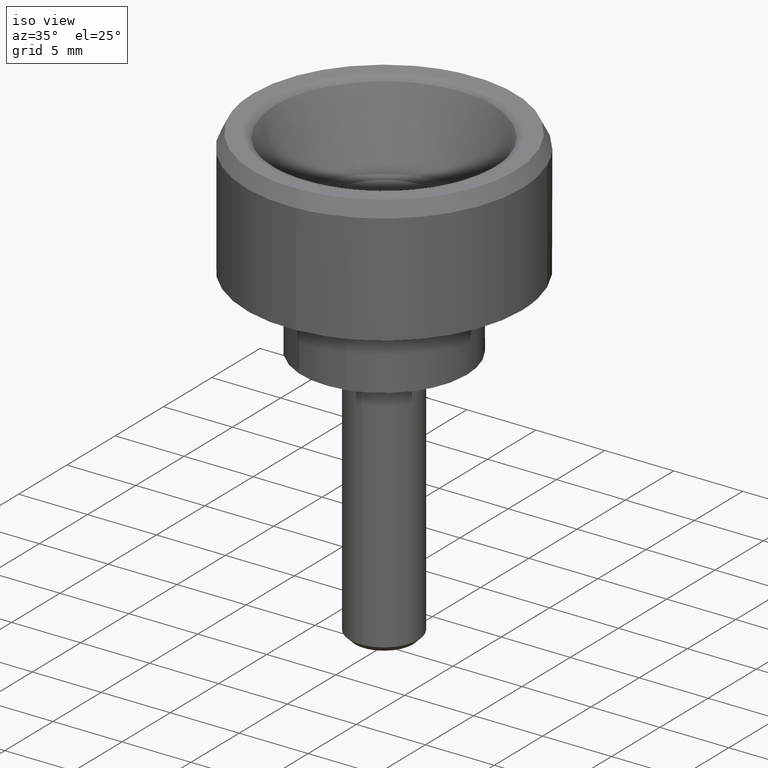
[diagram: clean part render]
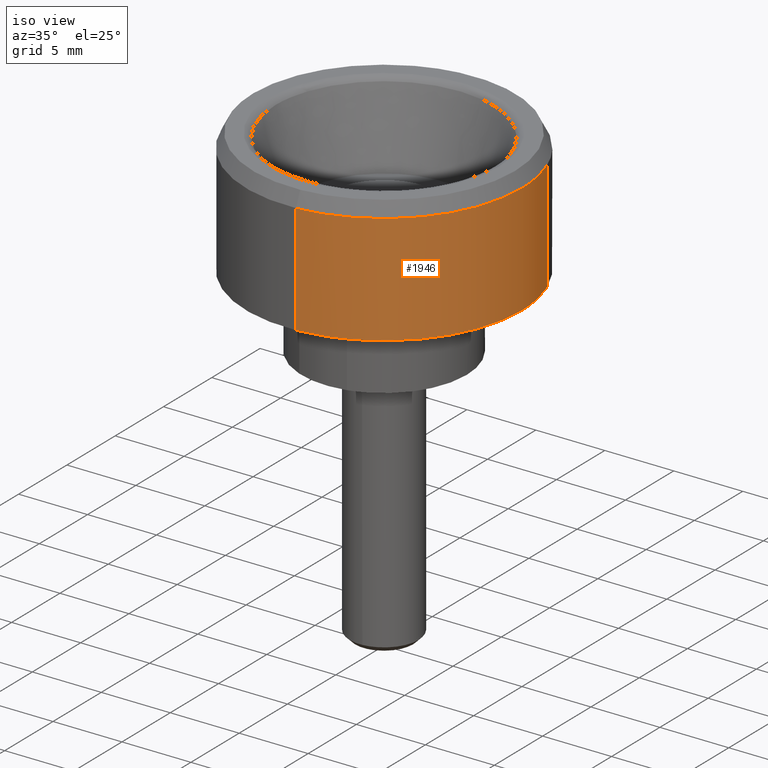
[diagram: same view with one face highlighted and labeled with its STEP entity id]
A machine part, iso view. The second image highlights one B-rep face of the part: STEP entity #1946.
In plain terms, the highlighted face is a freeform B-spline surface patch.
Its self-contained STEP definition (entity closure, byte-faithful):
#1739=CARTESIAN_POINT('',(2.503800040589022,-9.681476403775154,6.000000000001768));
#1740=VERTEX_POINT('',#1739);
#1746=CARTESIAN_POINT('',(0.610475361595761,-9.981348597899157,6.0));
#1747=VERTEX_POINT('',#1746);
#1748=CARTESIAN_POINT('',(2.503800040589022,-9.681476403775154,6.000000000001768));
#1749=CARTESIAN_POINT('',(1.571574981252123,-9.922566196700164,6.0));
#1750=CARTESIAN_POINT('',(0.610475361595761,-9.981348597899157,6.0));
#1758=(BOUNDED_CURVE()B_SPLINE_CURVE(2,(#1748,#1749,#1750),.UNSPECIFIED.,.F.,.U.)B_SPLINE_CURVE_WITH_KNOTS((3,3),(0.707273770288130,0.739333135694699),.UNSPECIFIED.)CURVE()GEOMETRIC_REPRESENTATION_ITEM()RATIONAL_B_SPLINE_CURVE((0.916996154474456,0.941717699901954,0.976072413415703))REPRESENTATION_ITEM(''));
#1759=EDGE_CURVE('',#1740,#1747,#1758,.T.);
#1797=CARTESIAN_POINT('',(9.361437293113475,3.516175736092539,6.0));
#1798=VERTEX_POINT('',#1797);
#1814=CARTESIAN_POINT('',(10.0,0.0,6.0));
#1815=VERTEX_POINT('',#1814);
#1816=CARTESIAN_POINT('',(9.361437293113475,3.516175736092540,6.0));
#1817=CARTESIAN_POINT('',(10.0,1.816071649465481,6.000000000000001));
#1818=CARTESIAN_POINT('',(10.0,0.0,6.0));
#1826=(BOUNDED_CURVE()B_SPLINE_CURVE(2,(#1816,#1817,#1818),.UNSPECIFIED.,.F.,.U.)B_SPLINE_CURVE_WITH_KNOTS((3,3),(0.440284238520502,0.500000000000000),.UNSPECIFIED.)CURVE()GEOMETRIC_REPRESENTATION_ITEM()RATIONAL_B_SPLINE_CURVE((0.893499637388585,0.930038633625493,1.0))REPRESENTATION_ITEM(''));
#1827=EDGE_CURVE('',#1798,#1815,#1826,.T.);
#1829=CARTESIAN_POINT('',(10.0,0.0,6.0));
#1830=CARTESIAN_POINT('',(10.0,-7.742827278346504,6.0));
#1831=CARTESIAN_POINT('',(2.503800040589022,-9.681476403775154,6.000000000001768));
#1839=(BOUNDED_CURVE()B_SPLINE_CURVE(2,(#1829,#1830,#1831),.UNSPECIFIED.,.F.,.U.)B_SPLINE_CURVE_WITH_KNOTS((3,3),(0.500000000000000,0.707273770288130),.UNSPECIFIED.)CURVE()GEOMETRIC_REPRESENTATION_ITEM()RATIONAL_B_SPLINE_CURVE((1.0,0.757163672978838,0.916996154474456))REPRESENTATION_ITEM(''));
#1840=EDGE_CURVE('',#1815,#1740,#1839,.T.);
#1877=CARTESIAN_POINT('',(9.328438382363174,3.604031649775000,14.199999999999999));
#1878=CARTESIAN_POINT('',(9.344956302611070,3.560054532275340,14.200000000000005));
#1879=CARTESIAN_POINT('',(9.889640193651504,2.109894517154083,14.200000000000006));
#1880=CARTESIAN_POINT('',(9.981347984218667,0.610485395348570,14.199999999999999));
#1881=CARTESIAN_POINT('',(10.591833379567237,-9.370862588870097,14.200000000000006));
#1882=CARTESIAN_POINT('',(0.568207392541855,-9.983933817645061,14.200000000000008));
#1883=CARTESIAN_POINT('',(0.526077482126000,-9.986510593352794,14.200000000000001));
#1884=CARTESIAN_POINT('',(9.328438382363174,3.604031649775000,5.794999999999999));
#1885=CARTESIAN_POINT('',(9.344956302611070,3.560054532275340,5.794999999999999));
#1886=CARTESIAN_POINT('',(9.889640193651504,2.109894517154083,5.795000000000000));
#1887=CARTESIAN_POINT('',(9.981347984218667,0.610485395348570,5.795000000000000));
#1888=CARTESIAN_POINT('',(10.591833379567237,-9.370862588870097,5.795000000000000));
#1889=CARTESIAN_POINT('',(0.568207392541855,-9.983933817645061,5.795000000000002));
#1890=CARTESIAN_POINT('',(0.526077482126000,-9.986510593352794,5.794999999999997));
#1898=(BOUNDED_SURFACE()B_SPLINE_SURFACE(2,1,((#1877,#1884),(#1878,#1885),(#1879,#1886),(#1880,#1887),(#1881,#1888),(#1882,#1889),(#1883,#1890)),.UNSPECIFIED.,.F.,.F.,.U.)B_SPLINE_SURFACE_WITH_KNOTS((3,1,2,1,3),(2,2),(0.0,0.099409046861922,3.413117545846681,19.981660040770478,20.081083118376220),(0.0,8.405000000000005),.UNSPECIFIED.)GEOMETRIC_REPRESENTATION_ITEM()RATIONAL_B_SPLINE_SURFACE(((0.904165385645275,0.904165385645275),(0.905219777812485,0.905219777812485),(0.941421356237309,0.941421356237309),(1.0,1.0),(0.707106781186548,0.707106781186548),(1.001757568309536,1.001757568309536),(1.003515136619073,1.003515136619073)))REPRESENTATION_ITEM('')SURFACE());
#1899=CARTESIAN_POINT('',(9.361436534043978,3.516177757034214,13.999999999999989));
#1900=VERTEX_POINT('',#1899);
#1901=CARTESIAN_POINT('',(10.0,0.0,14.0));
#1902=VERTEX_POINT('',#1901);
#1903=CARTESIAN_POINT('',(9.361436534043978,3.516177757034214,13.999999999999986));
#1904=CARTESIAN_POINT('',(10.0,1.816072764462297,14.000000000000004));
#1905=CARTESIAN_POINT('',(10.0,0.0,14.0));
#1913=(BOUNDED_CURVE()B_SPLINE_CURVE(2,(#1903,#1904,#1905),.UNSPECIFIED.,.F.,.U.)B_SPLINE_CURVE_WITH_KNOTS((3,3),(0.440284204422369,0.500000000000000),.UNSPECIFIED.)CURVE()GEOMETRIC_REPRESENTATION_ITEM()RATIONAL_B_SPLINE_CURVE((0.893499595660533,0.930038593677046,1.0))REPRESENTATION_ITEM(''));
#1914=EDGE_CURVE('',#1900,#1902,#1913,.T.);
#1915=ORIENTED_EDGE('',*,*,#1914,.T.);
#1916=CARTESIAN_POINT('',(0.610485395359689,-9.981347984218999,13.999999999996110));
#1917=VERTEX_POINT('',#1916);
#1918=CARTESIAN_POINT('',(10.0,0.0,14.0));
#1919=CARTESIAN_POINT('',(10.0,-9.407060669015161,14.000000000000004));
#1920=CARTESIAN_POINT('',(0.610485395359689,-9.981347984218999,13.999999999996106));
#1928=(BOUNDED_CURVE()B_SPLINE_CURVE(2,(#1918,#1919,#1920),.UNSPECIFIED.,.F.,.U.)B_SPLINE_CURVE_WITH_KNOTS((3,3),(0.500000000000000,0.739332962241203),.UNSPECIFIED.)CURVE()GEOMETRIC_REPRESENTATION_ITEM()RATIONAL_B_SPLINE_CURVE((1.0,0.719603993284062,0.976072041671562))REPRESENTATION_ITEM(''));
#1929=EDGE_CURVE('',#1902,#1917,#1928,.T.);
#1930=ORIENTED_EDGE('',*,*,#1929,.T.);
#1931=CARTESIAN_POINT('',(0.610485395359689,-9.981347984218999,13.999999999996110));
#1932=CARTESIAN_POINT('',(0.610475361595761,-9.981348597899157,6.0));
#1933=QUASI_UNIFORM_CURVE('',1,(#1931,#1932),.UNSPECIFIED.,.F.,.U.);
#1934=EDGE_CURVE('',#1917,#1747,#1933,.T.);
#1935=ORIENTED_EDGE('',*,*,#1934,.T.);
#1936=ORIENTED_EDGE('',*,*,#1759,.F.);
#1937=ORIENTED_EDGE('',*,*,#1840,.F.);
#1938=ORIENTED_EDGE('',*,*,#1827,.F.);
#1939=CARTESIAN_POINT('',(9.361436534043978,3.516177757034214,13.999999999999989));
#1940=CARTESIAN_POINT('',(9.361437293113475,3.516175736092539,6.0));
#1941=QUASI_UNIFORM_CURVE('',1,(#1939,#1940),.UNSPECIFIED.,.F.,.U.);
#1942=EDGE_CURVE('',#1900,#1798,#1941,.T.);
#1943=ORIENTED_EDGE('',*,*,#1942,.F.);
#1944=EDGE_LOOP('',(#1915,#1930,#1935,#1936,#1937,#1938,#1943));
#1945=FACE_OUTER_BOUND('',#1944,.T.);
#1946=ADVANCED_FACE('',(#1945),#1898,.T.);